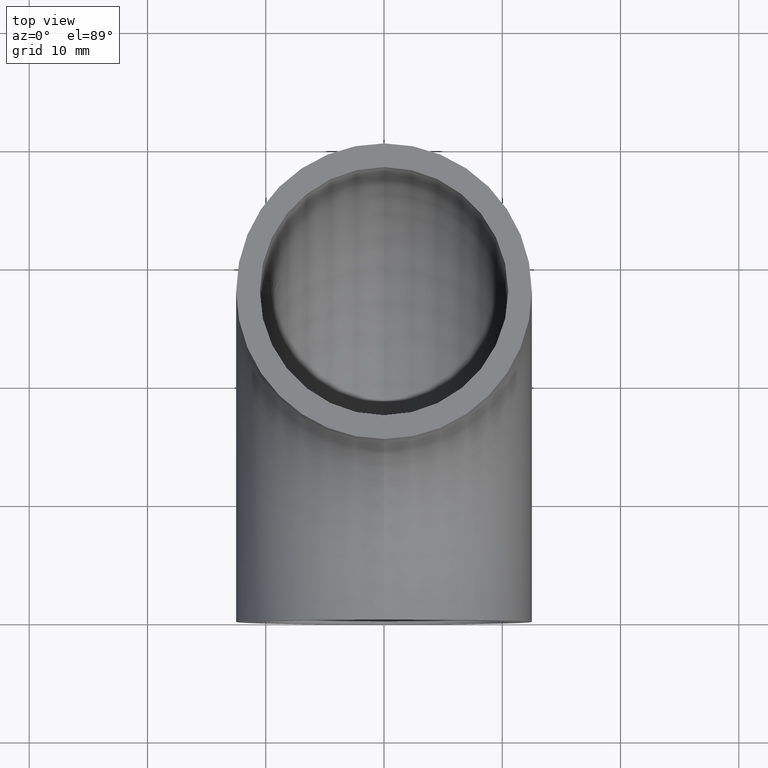
[diagram: clean part render]
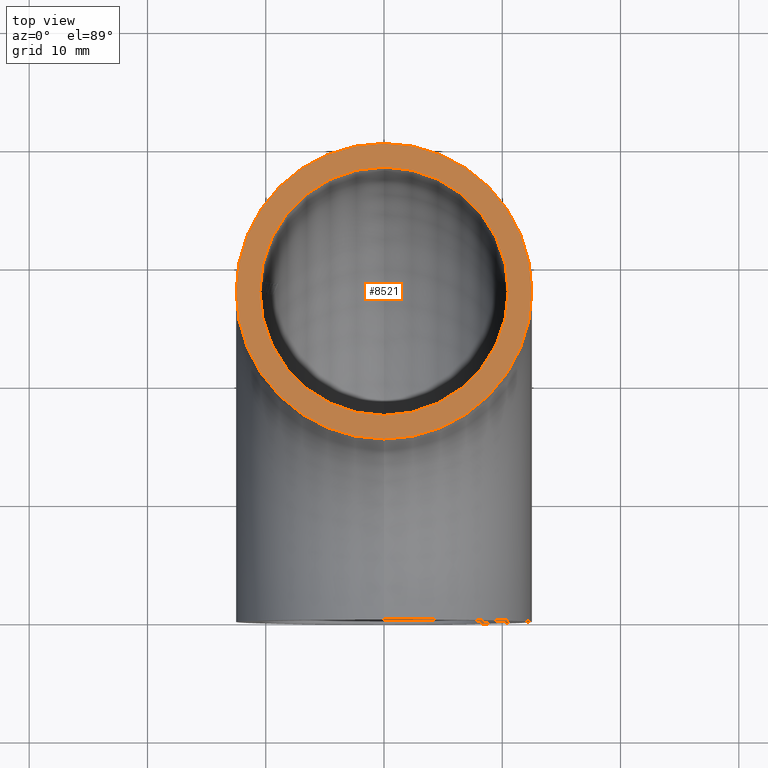
[diagram: same view with one face highlighted and labeled with its STEP entity id]
A machine part, top view. The second image highlights one B-rep face of the part: STEP entity #8521.
In plain terms, the highlighted planar face has unit normal (0, 0, 1).
Its self-contained STEP definition (entity closure, byte-faithful):
#524 = FACE_OUTER_BOUND ( 'NONE', #7492, .T. ) ;
#529 = EDGE_CURVE ( 'NONE', #4546, #645, #7758, .T. ) ;
#597 = CARTESIAN_POINT ( 'NONE',  ( 0.0000000000000000000, 15.00000000000000000, -9.184850993605147900E-016 ) ) ;
#645 = VERTEX_POINT ( 'NONE', #4021 ) ;
#817 = AXIS2_PLACEMENT_3D ( 'NONE', #11592, #6996, #6917 ) ;
#1666 = ORIENTED_EDGE ( 'NONE', *, *, #10003, .T. ) ;
#1944 = CARTESIAN_POINT ( 'NONE',  ( 0.0000000000000000000, 27.50000000000000000, -1.683889348827610700E-015 ) ) ;
#2058 = AXIS2_PLACEMENT_3D ( 'NONE', #2905, #10360, #6642 ) ;
#2772 = EDGE_CURVE ( 'NONE', #4965, #9446, #5962, .T. ) ;
#2879 = DIRECTION ( 'NONE',  ( 0.0000000000000000000, -1.000000000000000000, 6.123233995736766000E-017 ) ) ;
#2905 = CARTESIAN_POINT ( 'NONE',  ( 0.0000000000000000000, 27.50000000000000000, -1.683889348827610700E-015 ) ) ;
#2963 = EDGE_LOOP ( 'NONE', ( #5479, #8873 ) ) ;
#3196 = DIRECTION ( 'NONE',  ( 0.0000000000000000000, -1.000000000000000000, 6.123233995736766000E-017 ) ) ;
#3793 = EDGE_CURVE ( 'NONE', #645, #4546, #6518, .T. ) ;
#4003 = CARTESIAN_POINT ( 'NONE',  ( 0.0000000000000000000, 27.50000000000000000, -1.683889348827610700E-015 ) ) ;
#4021 = CARTESIAN_POINT ( 'NONE',  ( 0.0000000000000000000, 38.00000000000000000, -2.326828918379971000E-015 ) ) ;
#4546 = VERTEX_POINT ( 'NONE', #6584 ) ;
#4965 = VERTEX_POINT ( 'NONE', #597 ) ;
#5018 = DIRECTION ( 'NONE',  ( 0.0000000000000000000, 6.123233995736766000E-017, 1.000000000000000000 ) ) ;
#5259 = DIRECTION ( 'NONE',  ( 0.0000000000000000000, 6.123233995736766000E-017, 1.000000000000000000 ) ) ;
#5479 = ORIENTED_EDGE ( 'NONE', *, *, #529, .F. ) ;
#5670 = AXIS2_PLACEMENT_3D ( 'NONE', #4003, #5018, #3196 ) ;
#5934 = AXIS2_PLACEMENT_3D ( 'NONE', #11648, #5259, #7102 ) ;
#5962 = CIRCLE ( 'NONE', #5670, 12.50000000000000000 ) ;
#6019 = FACE_BOUND ( 'NONE', #2963, .T. ) ;
#6518 = CIRCLE ( 'NONE', #817, 10.49999999999999800 ) ;
#6584 = CARTESIAN_POINT ( 'NONE',  ( 0.0000000000000000000, 17.00000000000000000, -1.040949779275250100E-015 ) ) ;
#6611 = AXIS2_PLACEMENT_3D ( 'NONE', #1944, #8403, #2879 ) ;
#6642 = DIRECTION ( 'NONE',  ( 0.0000000000000000000, -1.000000000000000000, 6.123233995736766000E-017 ) ) ;
#6816 = PLANE ( 'NONE',  #5934 ) ;
#6917 = DIRECTION ( 'NONE',  ( 0.0000000000000000000, -1.000000000000000000, 6.123233995736766000E-017 ) ) ;
#6996 = DIRECTION ( 'NONE',  ( 0.0000000000000000000, 6.123233995736766000E-017, 1.000000000000000000 ) ) ;
#7102 = DIRECTION ( 'NONE',  ( 0.0000000000000000000, -1.000000000000000000, 6.123233995736766000E-017 ) ) ;
#7492 = EDGE_LOOP ( 'NONE', ( #10161, #1666 ) ) ;
#7758 = CIRCLE ( 'NONE', #6611, 10.49999999999999800 ) ;
#8403 = DIRECTION ( 'NONE',  ( 0.0000000000000000000, 6.123233995736766000E-017, 1.000000000000000000 ) ) ;
#8521 = ADVANCED_FACE ( 'NONE', ( #6019, #524 ), #6816, .T. ) ;
#8873 = ORIENTED_EDGE ( 'NONE', *, *, #3793, .F. ) ;
#9224 = CARTESIAN_POINT ( 'NONE',  ( 0.0000000000000000000, 40.00000000000000000, -2.449293598294706500E-015 ) ) ;
#9446 = VERTEX_POINT ( 'NONE', #9224 ) ;
#10003 = EDGE_CURVE ( 'NONE', #9446, #4965, #11372, .T. ) ;
#10161 = ORIENTED_EDGE ( 'NONE', *, *, #2772, .T. ) ;
#10360 = DIRECTION ( 'NONE',  ( 0.0000000000000000000, 6.123233995736766000E-017, 1.000000000000000000 ) ) ;
#11372 = CIRCLE ( 'NONE', #2058, 12.50000000000000000 ) ;
#11592 = CARTESIAN_POINT ( 'NONE',  ( 0.0000000000000000000, 27.50000000000000000, -1.683889348827610700E-015 ) ) ;
#11648 = CARTESIAN_POINT ( 'NONE',  ( 0.0000000000000000000, 27.50000000000000000, -1.683889348827610700E-015 ) ) ;